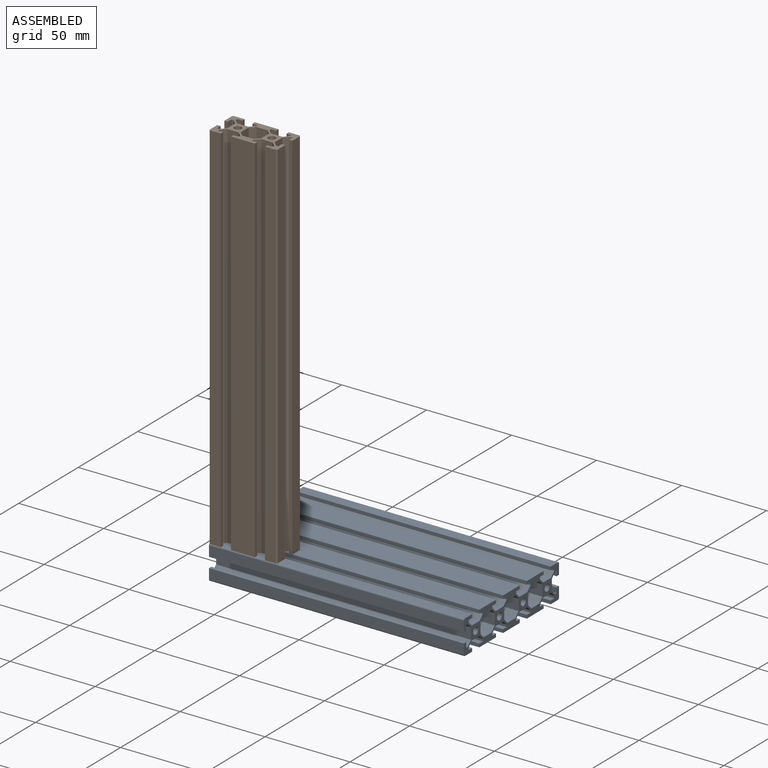
[diagram: assembled view]
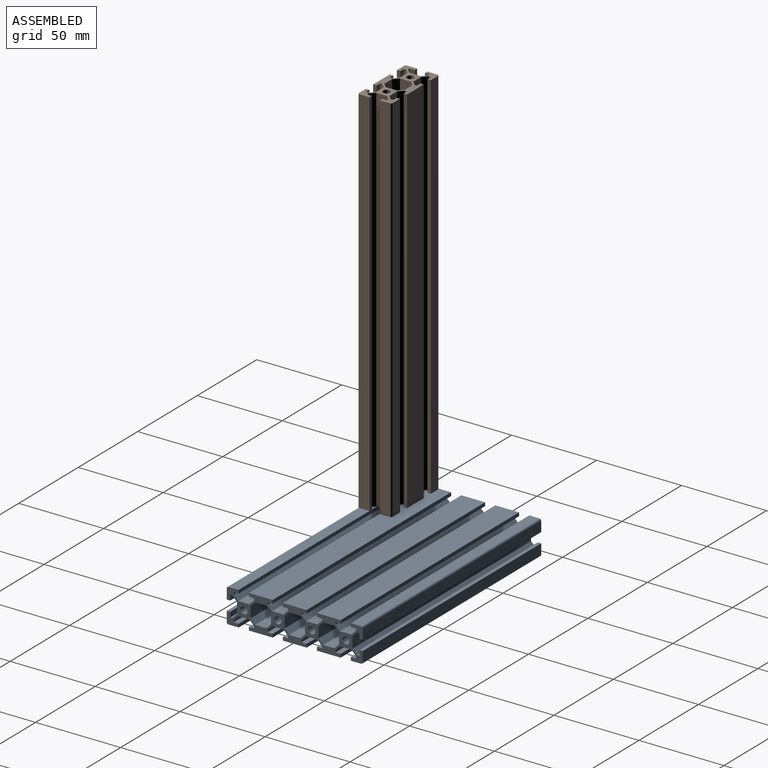
[diagram: assembled view, second angle]
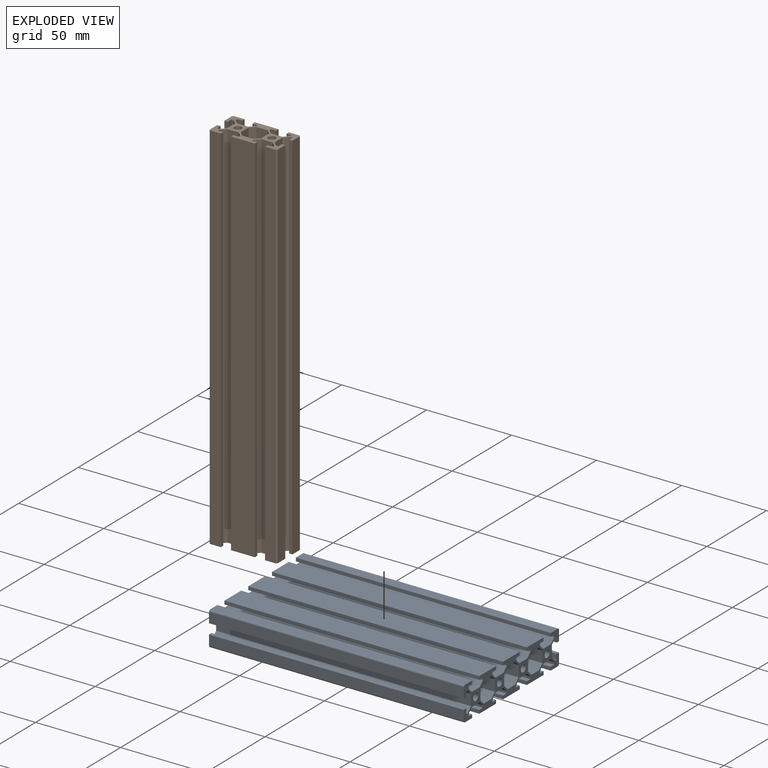
[diagram: exploded view]
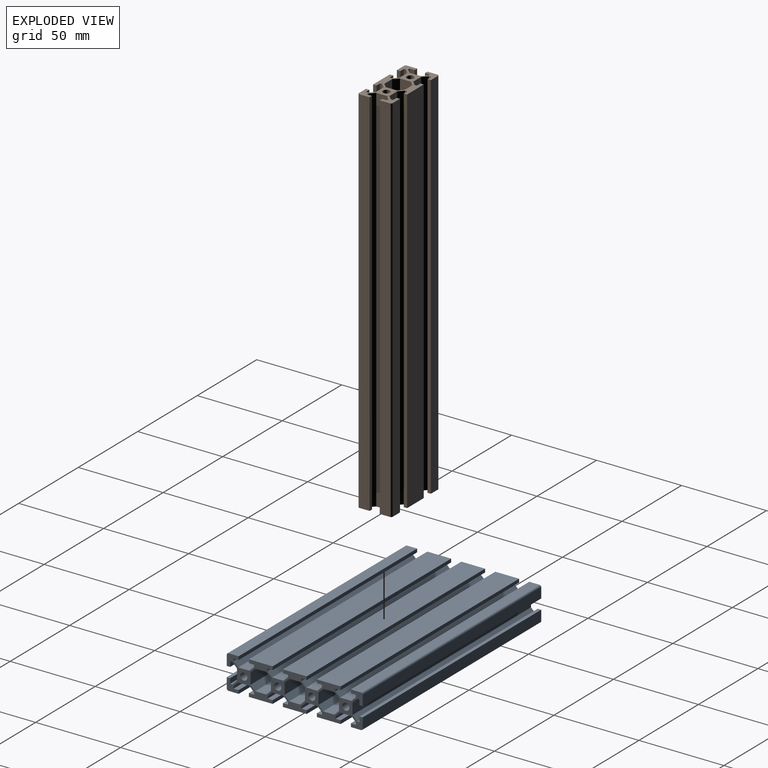
[diagram: exploded view, second angle]
ASSEMBLY  parts=2 mates=3
PART A: 138 faces, bbox 150x80x20 mm
  f0: plane 80x20mm, normal (1,0,0), area 629mm2, adj f2,f3,f4,f5,f6,f7,f8,f9
  f1: plane 80x20mm, normal (-1,0,0), area 629mm2, adj f2,f3,f4,f5,f6,f7,f8,f9
  f2: plane 150x6.59mm, normal (0,0,1), area 987.9mm2, adj f0,f1,f8,f22
  f3: cylinder r=2.1mm len=150mm, axis (-1,0,0), area 1979.2mm2, adj f0,f1
  f4: plane 150x14mm, normal (0,0,1), area 2100mm2, adj f0,f1,f5,f53
  f5: plane 150x2mm, normal (0,-1,0), area 300mm2, adj f0,f1,f4,f6
  f6: plane 150x3mm, normal (0,0,-1), area 450mm2, adj f0,f1,f5,f7
  f7: plane 150x1.29mm, normal (0,-1,0), area 193.9mm2, adj f0,f1,f6,f8
  f8: plane 150x2.71mm, normal (0,-0.71,0.71), area 574.3mm2, adj f0,f1,f2,f7
  f9: plane 150x6.59mm, normal (0,1,0), area 987.9mm2, adj f0,f1,f11,f35
  f10: plane 150x6.59mm, normal (0,0,-1), area 987.9mm2, adj f0,f1,f11,f52
  f11: plane 150x2.71mm, normal (0,0.71,-0.71), area 574.3mm2, adj f0,f1,f9,f10
  f12: plane 150x6.59mm, normal (0,-1,0), area 987.9mm2, adj f0,f1,f17,f33
  f13: plane 150x6mm, normal (0,-1,0), area 900mm2, adj f0,f1,f14,f137
  f14: plane 150x2mm, normal (0,0,-1), area 300mm2, adj f0,f1,f13,f15
  f15: plane 150x3mm, normal (0,1,0), area 450mm2, adj f0,f1,f14,f16
  f16: plane 150x1.29mm, normal (0,0,-1), area 193.9mm2, adj f0,f1,f15,f17
  f17: plane 150x2.71mm, normal (0,-0.71,-0.71), area 574.3mm2, adj f0,f1,f12,f16
  f18: plane 150x6mm, normal (0,0,1), area 900mm2, adj f0,f1,f19,f137
  f19: plane 150x2mm, normal (0,1,0), area 300mm2, adj f0,f1,f18,f20
  f20: plane 150x3mm, normal (0,0,-1), area 450mm2, adj f0,f1,f19,f21
  f21: plane 150x1.29mm, normal (0,1,0), area 193.9mm2, adj f0,f1,f20,f22
  f22: plane 150x2.71mm, normal (0,0.71,0.71), area 574.3mm2, adj f0,f1,f2,f21
  f23: plane 150x6.59mm, normal (0,0,-1), area 987.9mm2, adj f0,f1,f28,f40
  f24: plane 150x6mm, normal (0,0,-1), area 900mm2, adj f0,f1,f25,f136
  f25: plane 150x2mm, normal (0,1,0), area 300mm2, adj f0,f1,f24,f26
  f26: plane 150x3mm, normal (0,0,1), area 450mm2, adj f0,f1,f25,f27
  f27: plane 150x1.29mm, normal (0,1,0), area 193.9mm2, adj f0,f1,f26,f28
  f28: plane 150x2.71mm, normal (0,0.71,-0.71), area 574.3mm2, adj f0,f1,f23,f27
  f29: plane 150x6mm, normal (0,-1,0), area 900mm2, adj f0,f1,f30,f136
  f30: plane 150x2mm, normal (0,0,1), area 300mm2, adj f0,f1,f29,f31
  f31: plane 150x3mm, normal (0,1,0), area 450mm2, adj f0,f1,f30,f32
  f32: plane 150x1.29mm, normal (0,0,1), area 193.9mm2, adj f0,f1,f31,f33
  f33: plane 150x2.71mm, normal (0,-0.71,0.71), area 574.3mm2, adj f0,f1,f12,f32
  f34: plane 150x6.59mm, normal (0,0,1), area 987.9mm2, adj f0,f1,f35,f62
  f35: plane 150x2.71mm, normal (0,0.71,0.71), area 574.3mm2, adj f0,f1,f9,f34
  f36: plane 150x14mm, normal (0,0,-1), area 2100mm2, adj f0,f1,f37,f58
  f37: plane 150x2mm, normal (0,-1,0), area 300mm2, adj f0,f1,f36,f38
  f38: plane 150x3mm, normal (0,0,1), area 450mm2, adj f0,f1,f37,f39
  f39: plane 150x1.29mm, normal (0,-1,0), area 193.9mm2, adj f0,f1,f38,f40
  f40: plane 150x2.71mm, normal (0,-0.71,-0.71), area 574.3mm2, adj f0,f1,f23,f39
  f41: plane 150x6.59mm, normal (0,0,1), area 987.9mm2, adj f0,f1,f47,f56
  f42: cylinder r=2.1mm len=150mm, axis (-1,0,0), area 1979.2mm2, adj f0,f1
  f43: plane 150x14mm, normal (0,0,1), area 2100mm2, adj f0,f1,f44,f82
  f44: plane 150x2mm, normal (0,-1,0), area 300mm2, adj f0,f1,f43,f45
  f45: plane 150x3mm, normal (0,0,-1), area 450mm2, adj f0,f1,f44,f46
  f46: plane 150x1.29mm, normal (0,-1,0), area 193.9mm2, adj f0,f1,f45,f47
  f47: plane 150x2.71mm, normal (0,-0.71,0.71), area 574.3mm2, adj f0,f1,f41,f46
  f48: plane 150x6.59mm, normal (0,1,0), area 987.9mm2, adj f0,f1,f50,f64
  f49: plane 150x6.59mm, normal (0,0,-1), area 987.9mm2, adj f0,f1,f50,f81
  f50: plane 150x2.71mm, normal (0,0.71,-0.71), area 574.3mm2, adj f0,f1,f48,f49
  f51: plane 150x6.59mm, normal (0,-1,0), area 987.9mm2, adj f0,f1,f52,f62
  f52: plane 150x2.71mm, normal (0,-0.71,-0.71), area 574.3mm2, adj f0,f1,f10,f51
  f53: plane 150x2mm, normal (0,1,0), area 300mm2, adj f0,f1,f4,f54
  f54: plane 150x3mm, normal (0,0,-1), area 450mm2, adj f0,f1,f53,f55
  f55: plane 150x1.29mm, normal (0,1,0), area 193.9mm2, adj f0,f1,f54,f56
  f56: plane 150x2.71mm, normal (0,0.71,0.71), area 574.3mm2, adj f0,f1,f41,f55
  f57: plane 150x6.59mm, normal (0,0,-1), area 987.9mm2, adj f0,f1,f61,f69
  f58: plane 150x2mm, normal (0,1,0), area 300mm2, adj f0,f1,f36,f59
  f59: plane 150x3mm, normal (0,0,1), area 450mm2, adj f0,f1,f58,f60
  f60: plane 150x1.29mm, normal (0,1,0), area 193.9mm2, adj f0,f1,f59,f61
  f61: plane 150x2.71mm, normal (0,0.71,-0.71), area 574.3mm2, adj f0,f1,f57,f60
  f62: plane 150x2.71mm, normal (0,-0.71,0.71), area 574.3mm2, adj f0,f1,f34,f51
  f63: plane 150x6.59mm, normal (0,0,1), area 987.9mm2, adj f0,f1,f64,f91
  f64: plane 150x2.71mm, normal (0,0.71,0.71), area 574.3mm2, adj f0,f1,f48,f63
  f65: plane 150x14mm, normal (0,0,-1), area 2100mm2, adj f0,f1,f66,f87
  f66: plane 150x2mm, normal (0,-1,0), area 300mm2, adj f0,f1,f65,f67
  f67: plane 150x3mm, normal (0,0,1), area 450mm2, adj f0,f1,f66,f68
  f68: plane 150x1.29mm, normal (0,-1,0), area 193.9mm2, adj f0,f1,f67,f69
  f69: plane 150x2.71mm, normal (0,-0.71,-0.71), area 574.3mm2, adj f0,f1,f57,f68
  f70: plane 150x6.59mm, normal (0,0,1), area 987.9mm2, adj f0,f1,f76,f85
  f71: cylinder r=2.1mm len=150mm, axis (-1,0,0), area 1979.2mm2, adj f0,f1
  f72: plane 150x14mm, normal (0,0,1), area 2100mm2, adj f0,f1,f73,f114
  f73: plane 150x2mm, normal (0,-1,0), area 300mm2, adj f0,f1,f72,f74
  f74: plane 150x3mm, normal (0,0,-1), area 450mm2, adj f0,f1,f73,f75
  f75: plane 150x1.29mm, normal (0,-1,0), area 193.9mm2, adj f0,f1,f74,f76
  f76: plane 150x2.71mm, normal (0,-0.71,0.71), area 574.3mm2, adj f0,f1,f70,f75
  f77: plane 150x6.59mm, normal (0,1,0), area 987.9mm2, adj f0,f1,f79,f93
  f78: plane 150x6.59mm, normal (0,0,-1), area 987.9mm2, adj f0,f1,f79,f113
  f79: plane 150x2.71mm, normal (0,0.71,-0.71), area 574.3mm2, adj f0,f1,f77,f78
  f80: plane 150x6.59mm, normal (0,-1,0), area 987.9mm2, adj f0,f1,f81,f91
  f81: plane 150x2.71mm, normal (0,-0.71,-0.71), area 574.3mm2, adj f0,f1,f49,f80
  f82: plane 150x2mm, normal (0,1,0), area 300mm2, adj f0,f1,f43,f83
  f83: plane 150x3mm, normal (0,0,-1), area 450mm2, adj f0,f1,f82,f84
  f84: plane 150x1.29mm, normal (0,1,0), area 193.9mm2, adj f0,f1,f83,f85
  f85: plane 150x2.71mm, normal (0,0.71,0.71), area 574.3mm2, adj f0,f1,f70,f84
  f86: plane 150x6.59mm, normal (0,0,-1), area 987.9mm2, adj f0,f1,f90,f98
  f87: plane 150x2mm, normal (0,1,0), area 300mm2, adj f0,f1,f65,f88
  f88: plane 150x3mm, normal (0,0,1), area 450mm2, adj f0,f1,f87,f89
  f89: plane 150x1.29mm, normal (0,1,0), area 193.9mm2, adj f0,f1,f88,f90
  f90: plane 150x2.71mm, normal (0,0.71,-0.71), area 574.3mm2, adj f0,f1,f86,f89
  f91: plane 150x2.71mm, normal (0,-0.71,0.71), area 574.3mm2, adj f0,f1,f63,f80
  f92: plane 150x6.59mm, normal (0,0,1), area 987.9mm2, adj f0,f1,f93,f123
  f93: plane 150x2.71mm, normal (0,0.71,0.71), area 574.3mm2, adj f0,f1,f77,f92
  f94: plane 150x14mm, normal (0,0,-1), area 2100mm2, adj f0,f1,f95,f119
  f95: plane 150x2mm, normal (0,-1,0), area 300mm2, adj f0,f1,f94,f96
  f96: plane 150x3mm, normal (0,0,1), area 450mm2, adj f0,f1,f95,f97
  f97: plane 150x1.29mm, normal (0,-1,0), area 193.9mm2, adj f0,f1,f96,f98
  f98: plane 150x2.71mm, normal (0,-0.71,-0.71), area 574.3mm2, adj f0,f1,f86,f97
  f99: plane 150x6.59mm, normal (0,0,1), area 987.9mm2, adj f0,f1,f105,f117
  f100: cylinder r=2.1mm len=150mm, axis (-1,0,0), area 1979.2mm2, adj f0,f1
  f101: plane 150x6mm, normal (0,0,1), area 900mm2, adj f0,f1,f102,f135
  f102: plane 150x2mm, normal (0,-1,0), area 300mm2, adj f0,f1,f101,f103
  f103: plane 150x3mm, normal (0,0,-1), area 450mm2, adj f0,f1,f102,f104
  f104: plane 150x1.29mm, normal (0,-1,0), area 193.9mm2, adj f0,f1,f103,f105
  f105: plane 150x2.71mm, normal (0,-0.71,0.71), area 574.3mm2, adj f0,f1,f99,f104
  f106: plane 150x6.59mm, normal (0,1,0), area 987.9mm2, adj f0,f1,f111,f128
  f107: plane 150x6mm, normal (0,1,0), area 900mm2, adj f0,f1,f108,f135
  f108: plane 150x2mm, normal (0,0,-1), area 300mm2, adj f0,f1,f107,f109
  f109: plane 150x3mm, normal (0,-1,0), area 450mm2, adj f0,f1,f108,f110
  f110: plane 150x1.29mm, normal (0,0,-1), area 193.9mm2, adj f0,f1,f109,f111
  f111: plane 150x2.71mm, normal (0,0.71,-0.71), area 574.3mm2, adj f0,f1,f106,f110
  f112: plane 150x6.59mm, normal (0,-1,0), area 987.9mm2, adj f0,f1,f113,f123
  f113: plane 150x2.71mm, normal (0,-0.71,-0.71), area 574.3mm2, adj f0,f1,f78,f112
  f114: plane 150x2mm, normal (0,1,0), area 300mm2, adj f0,f1,f72,f115
  f115: plane 150x3mm, normal (0,0,-1), area 450mm2, adj f0,f1,f114,f116
  f116: plane 150x1.29mm, normal (0,1,0), area 193.9mm2, adj f0,f1,f115,f117
  f117: plane 150x2.71mm, normal (0,0.71,0.71), area 574.3mm2, adj f0,f1,f99,f116
  f118: plane 150x6.59mm, normal (0,0,-1), area 987.9mm2, adj f0,f1,f122,f133
  f119: plane 150x2mm, normal (0,1,0), area 300mm2, adj f0,f1,f94,f120
  f120: plane 150x3mm, normal (0,0,1), area 450mm2, adj f0,f1,f119,f121
  f121: plane 150x1.29mm, normal (0,1,0), area 193.9mm2, adj f0,f1,f120,f122
  f122: plane 150x2.71mm, normal (0,0.71,-0.71), area 574.3mm2, adj f0,f1,f118,f121
  f123: plane 150x2.71mm, normal (0,-0.71,0.71), area 574.3mm2, adj f0,f1,f92,f112
  f124: plane 150x6mm, normal (0,1,0), area 900mm2, adj f0,f1,f125,f134
  f125: plane 150x2mm, normal (0,0,1), area 300mm2, adj f0,f1,f124,f126
  f126: plane 150x3mm, normal (0,-1,0), area 450mm2, adj f0,f1,f125,f127
  f127: plane 150x1.29mm, normal (0,0,1), area 193.9mm2, adj f0,f1,f126,f128
  f128: plane 150x2.71mm, normal (0,0.71,0.71), area 574.3mm2, adj f0,f1,f106,f127
  f129: plane 150x6mm, normal (0,0,-1), area 900mm2, adj f0,f1,f130,f134
  f130: plane 150x2mm, normal (0,-1,0), area 300mm2, adj f0,f1,f129,f131
  f131: plane 150x3mm, normal (0,0,1), area 450mm2, adj f0,f1,f130,f132
  f132: plane 150x1.29mm, normal (0,-1,0), area 193.9mm2, adj f0,f1,f131,f133
  f133: plane 150x2.71mm, normal (0,-0.71,-0.71), area 574.3mm2, adj f0,f1,f118,f132
  f134: cylinder r=1mm len=150mm, axis (-1,0,0), area 235.6mm2, adj f0,f1,f124,f129
  f135: cylinder r=1mm len=150mm, axis (-1,0,0), area 235.6mm2, adj f0,f1,f101,f107
  f136: cylinder r=1mm len=150mm, axis (-1,0,0), area 235.6mm2, adj f0,f1,f24,f29
  f137: cylinder r=1mm len=150mm, axis (-1,0,0), area 235.6mm2, adj f0,f1,f13,f18
PART B: 80 faces, bbox 220x40x20 mm
  f0: plane 40x20mm, normal (1,0,0), area 326.1mm2, adj f2,f3,f4,f5,f6,f7,f8,f9
  f1: plane 40x20mm, normal (-1,0,0), area 326.1mm2, adj f2,f3,f4,f5,f6,f7,f8,f9
  f2: plane 220x6.59mm, normal (0,0,1), area 1448.9mm2, adj f0,f1,f8,f22
  f3: cylinder r=2.1mm len=220mm, axis (-1,0,0), area 2902.8mm2, adj f0,f1
  f4: plane 220x14mm, normal (0,0,1), area 3080mm2, adj f0,f1,f5,f56
  f5: plane 220x2mm, normal (0,-1,0), area 440mm2, adj f0,f1,f4,f6
  f6: plane 220x3mm, normal (0,0,-1), area 660mm2, adj f0,f1,f5,f7
  f7: plane 220x1.29mm, normal (0,-1,0), area 284.4mm2, adj f0,f1,f6,f8
  f8: plane 220x2.71mm, normal (0,-0.71,0.71), area 842.3mm2, adj f0,f1,f2,f7
  f9: plane 220x6.59mm, normal (0,1,0), area 1448.9mm2, adj f0,f1,f11,f35
  f10: plane 220x6.59mm, normal (0,0,-1), area 1448.9mm2, adj f0,f1,f11,f55
  f11: plane 220x2.71mm, normal (0,0.71,-0.71), area 842.3mm2, adj f0,f1,f9,f10
  f12: plane 220x6.59mm, normal (0,-1,0), area 1448.9mm2, adj f0,f1,f17,f33
  f13: plane 220x6mm, normal (0,-1,0), area 1320mm2, adj f0,f1,f14,f79
  f14: plane 220x2mm, normal (0,0,-1), area 440mm2, adj f0,f1,f13,f15
  f15: plane 220x3mm, normal (0,1,0), area 660mm2, adj f0,f1,f14,f16
  f16: plane 220x1.29mm, normal (0,0,-1), area 284.4mm2, adj f0,f1,f15,f17
  f17: plane 220x2.71mm, normal (0,-0.71,-0.71), area 842.3mm2, adj f0,f1,f12,f16
  f18: plane 220x6mm, normal (0,0,1), area 1320mm2, adj f0,f1,f19,f79
  f19: plane 220x2mm, normal (0,1,0), area 440mm2, adj f0,f1,f18,f20
  f20: plane 220x3mm, normal (0,0,-1), area 660mm2, adj f0,f1,f19,f21
  f21: plane 220x1.29mm, normal (0,1,0), area 284.4mm2, adj f0,f1,f20,f22
  f22: plane 220x2.71mm, normal (0,0.71,0.71), area 842.3mm2, adj f0,f1,f2,f21
  f23: plane 220x6.59mm, normal (0,0,-1), area 1448.9mm2, adj f0,f1,f28,f40
  f24: plane 220x6mm, normal (0,0,-1), area 1320mm2, adj f0,f1,f25,f78
  f25: plane 220x2mm, normal (0,1,0), area 440mm2, adj f0,f1,f24,f26
  f26: plane 220x3mm, normal (0,0,1), area 660mm2, adj f0,f1,f25,f27
  f27: plane 220x1.29mm, normal (0,1,0), area 284.4mm2, adj f0,f1,f26,f28
  f28: plane 220x2.71mm, normal (0,0.71,-0.71), area 842.3mm2, adj f0,f1,f23,f27
  f29: plane 220x6mm, normal (0,-1,0), area 1320mm2, adj f0,f1,f30,f78
  f30: plane 220x2mm, normal (0,0,1), area 440mm2, adj f0,f1,f29,f31
  f31: plane 220x3mm, normal (0,1,0), area 660mm2, adj f0,f1,f30,f32
  f32: plane 220x1.29mm, normal (0,0,1), area 284.4mm2, adj f0,f1,f31,f33
  f33: plane 220x2.71mm, normal (0,-0.71,0.71), area 842.3mm2, adj f0,f1,f12,f32
  f34: plane 220x6.59mm, normal (0,0,1), area 1448.9mm2, adj f0,f1,f35,f65
  f35: plane 220x2.71mm, normal (0,0.71,0.71), area 842.3mm2, adj f0,f1,f9,f34
  f36: plane 220x14mm, normal (0,0,-1), area 3080mm2, adj f0,f1,f37,f61
  f37: plane 220x2mm, normal (0,-1,0), area 440mm2, adj f0,f1,f36,f38
  f38: plane 220x3mm, normal (0,0,1), area 660mm2, adj f0,f1,f37,f39
  f39: plane 220x1.29mm, normal (0,-1,0), area 284.4mm2, adj f0,f1,f38,f40
  f40: plane 220x2.71mm, normal (0,-0.71,-0.71), area 842.3mm2, adj f0,f1,f23,f39
  f41: plane 220x6.59mm, normal (0,0,1), area 1448.9mm2, adj f0,f1,f47,f59
  f42: cylinder r=2.1mm len=220mm, axis (-1,0,0), area 2902.8mm2, adj f0,f1
  f43: plane 220x6mm, normal (0,0,1), area 1320mm2, adj f0,f1,f44,f77
  f44: plane 220x2mm, normal (0,-1,0), area 440mm2, adj f0,f1,f43,f45
  f45: plane 220x3mm, normal (0,0,-1), area 660mm2, adj f0,f1,f44,f46
  f46: plane 220x1.29mm, normal (0,-1,0), area 284.4mm2, adj f0,f1,f45,f47
  f47: plane 220x2.71mm, normal (0,-0.71,0.71), area 842.3mm2, adj f0,f1,f41,f46
  f48: plane 220x6.59mm, normal (0,1,0), area 1448.9mm2, adj f0,f1,f53,f70
  f49: plane 220x6mm, normal (0,1,0), area 1320mm2, adj f0,f1,f50,f77
  f50: plane 220x2mm, normal (0,0,-1), area 440mm2, adj f0,f1,f49,f51
  f51: plane 220x3mm, normal (0,-1,0), area 660mm2, adj f0,f1,f50,f52
  f52: plane 220x1.29mm, normal (0,0,-1), area 284.4mm2, adj f0,f1,f51,f53
  f53: plane 220x2.71mm, normal (0,0.71,-0.71), area 842.3mm2, adj f0,f1,f48,f52
  f54: plane 220x6.59mm, normal (0,-1,0), area 1448.9mm2, adj f0,f1,f55,f65
  f55: plane 220x2.71mm, normal (0,-0.71,-0.71), area 842.3mm2, adj f0,f1,f10,f54
  f56: plane 220x2mm, normal (0,1,0), area 440mm2, adj f0,f1,f4,f57
  f57: plane 220x3mm, normal (0,0,-1), area 660mm2, adj f0,f1,f56,f58
  f58: plane 220x1.29mm, normal (0,1,0), area 284.4mm2, adj f0,f1,f57,f59
  f59: plane 220x2.71mm, normal (0,0.71,0.71), area 842.3mm2, adj f0,f1,f41,f58
  f60: plane 220x6.59mm, normal (0,0,-1), area 1448.9mm2, adj f0,f1,f64,f75
  f61: plane 220x2mm, normal (0,1,0), area 440mm2, adj f0,f1,f36,f62
  f62: plane 220x3mm, normal (0,0,1), area 660mm2, adj f0,f1,f61,f63
  f63: plane 220x1.29mm, normal (0,1,0), area 284.4mm2, adj f0,f1,f62,f64
  f64: plane 220x2.71mm, normal (0,0.71,-0.71), area 842.3mm2, adj f0,f1,f60,f63
  f65: plane 220x2.71mm, normal (0,-0.71,0.71), area 842.3mm2, adj f0,f1,f34,f54
  f66: plane 220x6mm, normal (0,1,0), area 1320mm2, adj f0,f1,f67,f76
  f67: plane 220x2mm, normal (0,0,1), area 440mm2, adj f0,f1,f66,f68
  f68: plane 220x3mm, normal (0,-1,0), area 660mm2, adj f0,f1,f67,f69
  f69: plane 220x1.29mm, normal (0,0,1), area 284.4mm2, adj f0,f1,f68,f70
  f70: plane 220x2.71mm, normal (0,0.71,0.71), area 842.3mm2, adj f0,f1,f48,f69
  f71: plane 220x6mm, normal (0,0,-1), area 1320mm2, adj f0,f1,f72,f76
  f72: plane 220x2mm, normal (0,-1,0), area 440mm2, adj f0,f1,f71,f73
  f73: plane 220x3mm, normal (0,0,1), area 660mm2, adj f0,f1,f72,f74
  f74: plane 220x1.29mm, normal (0,-1,0), area 284.4mm2, adj f0,f1,f73,f75
  f75: plane 220x2.71mm, normal (0,-0.71,-0.71), area 842.3mm2, adj f0,f1,f60,f74
  f76: cylinder r=1mm len=220mm, axis (-1,0,0), area 345.6mm2, adj f0,f1,f66,f71
  f77: cylinder r=1mm len=220mm, axis (-1,0,0), area 345.6mm2, adj f0,f1,f43,f49
  f78: cylinder r=1mm len=220mm, axis (-1,0,0), area 345.6mm2, adj f0,f1,f24,f29
  f79: cylinder r=1mm len=220mm, axis (-1,0,0), area 345.6mm2, adj f0,f1,f13,f18
PLACE A t=(-75,-30,10)mm
PLACE B rot(axis=(0.58,-0.58,0.58),120deg) t=(-45,-30,20)mm
MATE planar B.f1 <-> A.f4  axis (0,0,-1) through (-55,-40,20)mm
MATE planar B.f4 <-> A.f13  axis (0,-1,0) through (-55,-40,20)mm
MATE planar B.f66 <-> A.f1  axis (-1,0,0) through (-75,-27,20)mm
